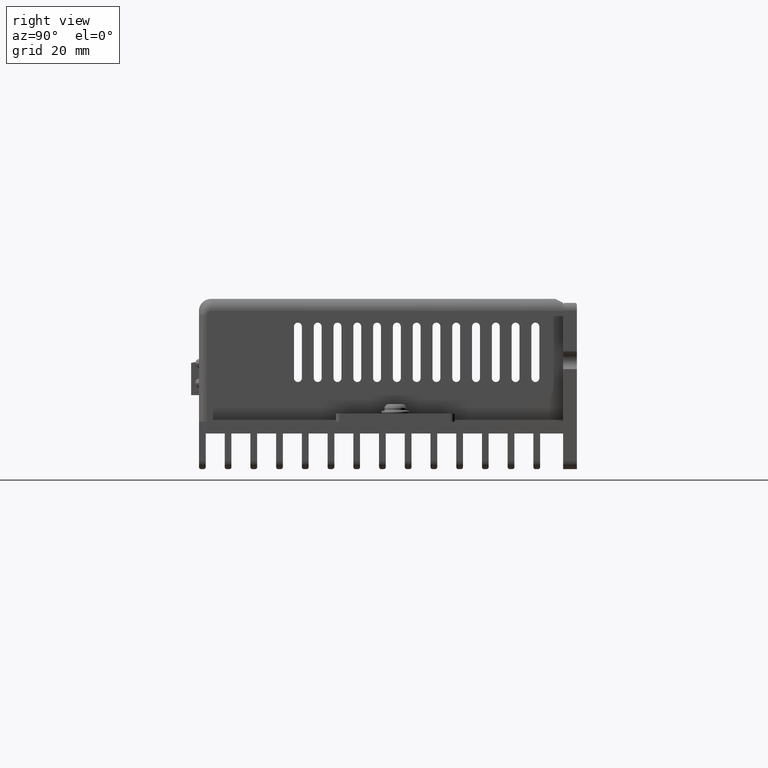
[diagram: clean part render]
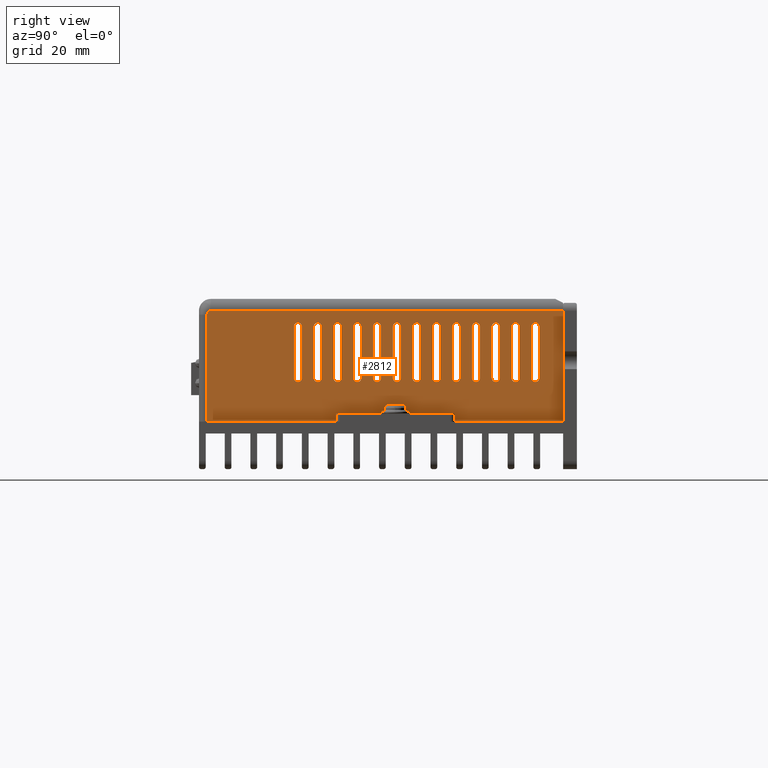
[diagram: same view with one face highlighted and labeled with its STEP entity id]
A machine part, right view. The second image highlights one B-rep face of the part: STEP entity #2812.
In plain terms, the highlighted planar face has unit normal (1, 0, 0).
Its self-contained STEP definition (entity closure, byte-faithful):
#3 = DIRECTION ( 'NONE',  ( 0.0000000000000000000, 0.0000000000000000000, 1.000000000000000000 ) ) ;
#22 = ORIENTED_EDGE ( 'NONE', *, *, #33573, .T. ) ;
#85 = EDGE_CURVE ( 'NONE', #54067, #29801, #30107, .T. ) ;
#108 = AXIS2_PLACEMENT_3D ( 'NONE', #40824, #23910, #10650 ) ;
#144 = EDGE_CURVE ( 'NONE', #53235, #54624, #29456, .T. ) ;
#166 = ORIENTED_EDGE ( 'NONE', *, *, #25195, .F. ) ;
#205 = VECTOR ( 'NONE', #6120, 39.37007874015748100 ) ;
#326 = CARTESIAN_POINT ( 'NONE',  ( 2.559055118110210800, -0.6496062992126278000, -0.7874015748031502100 ) ) ;
#345 = VERTEX_POINT ( 'NONE', #15387 ) ;
#463 = ORIENTED_EDGE ( 'NONE', *, *, #3435, .T. ) ;
#530 = DIRECTION ( 'NONE',  ( 0.0000000000000000000, 0.0000000000000000000, -1.000000000000000000 ) ) ;
#556 = EDGE_CURVE ( 'NONE', #20065, #39069, #1890, .T. ) ;
#566 = EDGE_CURVE ( 'NONE', #11351, #50501, #33460, .T. ) ;
#595 = EDGE_LOOP ( 'NONE', ( #30745, #36022, #51693, #15812 ) ) ;
#866 = CARTESIAN_POINT ( 'NONE',  ( 2.559055118110224600, 1.358267716535404000, -0.2755905511811018700 ) ) ;
#867 = VERTEX_POINT ( 'NONE', #36143 ) ;
#939 = DIRECTION ( 'NONE',  ( -1.387778780781444600E-014, 0.0000000000000000000, -1.000000000000000000 ) ) ;
#1014 = LINE ( 'NONE', #41569, #7725 ) ;
#1063 = AXIS2_PLACEMENT_3D ( 'NONE', #20656, #29647, #38468 ) ;
#1080 = DIRECTION ( 'NONE',  ( -1.000000000000000000, -0.0000000000000000000, 6.938893903907222100E-015 ) ) ;
#1233 = DIRECTION ( 'NONE',  ( 0.0000000000000000000, 0.0000000000000000000, -1.000000000000000000 ) ) ;
#1313 = DIRECTION ( 'NONE',  ( -0.0000000000000000000, -0.0000000000000000000, 1.000000000000000000 ) ) ;
#1390 = CIRCLE ( 'NONE', #40778, 0.03937007874015751400 ) ;
#1819 = AXIS2_PLACEMENT_3D ( 'NONE', #7408, #11142, #54252 ) ;
#1890 = LINE ( 'NONE', #25684, #10647 ) ;
#2023 = AXIS2_PLACEMENT_3D ( 'NONE', #42573, #25485, #16713 ) ;
#2079 = DIRECTION ( 'NONE',  ( -1.000000000000000000, -0.0000000000000000000, -6.938893903907228400E-015 ) ) ;
#2100 = ORIENTED_EDGE ( 'NONE', *, *, #55110, .T. ) ;
#2228 = DIRECTION ( 'NONE',  ( 0.0000000000000000000, 0.0000000000000000000, 1.000000000000000000 ) ) ;
#2246 = VECTOR ( 'NONE', #25286, 39.37007874015748100 ) ;
#2311 = CARTESIAN_POINT ( 'NONE',  ( 2.559055118110248600, -1.751968503937015400, -0.1574803149606861200 ) ) ;
#2469 = DIRECTION ( 'NONE',  ( -1.000000000000000000, 0.0000000000000000000, -0.0000000000000000000 ) ) ;
#2536 = AXIS2_PLACEMENT_3D ( 'NONE', #39669, #13970, #39479 ) ;
#2671 = EDGE_CURVE ( 'NONE', #37878, #45658, #32479, .T. ) ;
#2689 = CARTESIAN_POINT ( 'NONE',  ( 2.559055118110210800, -0.05905511811026555000, -0.8267716535433077300 ) ) ;
#2691 = CARTESIAN_POINT ( 'NONE',  ( 2.559055118110237900, 1.555118110236191100, -0.09606299212598430600 ) ) ;
#2759 = CIRCLE ( 'NONE', #2023, 0.03937007874015751400 ) ;
#2800 = EDGE_CURVE ( 'NONE', #5831, #50523, #19733, .T. ) ;
#2803 = VERTEX_POINT ( 'NONE', #6524 ) ;
#2812 = ADVANCED_FACE ( 'NONE', ( #6350, #45236, #33845, #39226, #23734, #38520, #55308, #51305, #48596, #31156, #8352, #52629, #41192, #27797 ), #14755, .T. ) ;
#2857 = CARTESIAN_POINT ( 'NONE',  ( 2.559055118110237900, 0.1771653543306795900, -0.09606299212598430600 ) ) ;
#2862 = LINE ( 'NONE', #52740, #48273 ) ;
#2945 = ORIENTED_EDGE ( 'NONE', *, *, #38083, .T. ) ;
#3210 = VERTEX_POINT ( 'NONE', #7765 ) ;
#3435 = EDGE_CURVE ( 'NONE', #26463, #7226, #4902, .T. ) ;
#3600 = CARTESIAN_POINT ( 'NONE',  ( 2.559055118110210800, -0.05905511811026555000, -0.2755905511811022600 ) ) ;
#3652 = CARTESIAN_POINT ( 'NONE',  ( 2.559055118110224600, -0.2952755905512103900, -0.7874015748031496500 ) ) ;
#3669 = EDGE_CURVE ( 'NONE', #32869, #28489, #35750, .T. ) ;
#3682 = DIRECTION ( 'NONE',  ( -1.000000000000000000, -0.0000000000000000000, -6.938893903907222100E-015 ) ) ;
#3760 = EDGE_CURVE ( 'NONE', #10349, #867, #16294, .T. ) ;
#3853 = EDGE_CURVE ( 'NONE', #31057, #11296, #42441, .T. ) ;
#3947 = DIRECTION ( 'NONE',  ( -1.387778780781444600E-014, 8.673617379884028600E-016, -1.000000000000000000 ) ) ;
#3956 = DIRECTION ( 'NONE',  ( 0.0000000000000000000, 0.0000000000000000000, 1.000000000000000000 ) ) ;
#4038 = EDGE_CURVE ( 'NONE', #21245, #35120, #2862, .T. ) ;
#4042 = CARTESIAN_POINT ( 'NONE',  ( 2.559055118110183700, 1.476377952755876200, -0.7874015748031498700 ) ) ;
#4082 = DIRECTION ( 'NONE',  ( -1.000000000000000000, -0.0000000000000000000, 6.938893903907221300E-015 ) ) ;
#4094 = EDGE_CURVE ( 'NONE', #32790, #2803, #20951, .T. ) ;
#4129 = CARTESIAN_POINT ( 'NONE',  ( 2.559055118110210800, -0.8464566929134153000, -0.2362204724409449100 ) ) ;
#4177 = VERTEX_POINT ( 'NONE', #28312 ) ;
#4190 = EDGE_CURVE ( 'NONE', #12991, #15145, #27677, .T. ) ;
#4600 = VERTEX_POINT ( 'NONE', #30654 ) ;
#4640 = DIRECTION ( 'NONE',  ( -1.000000000000000000, -0.0000000000000000000, 6.938893903907222100E-015 ) ) ;
#4650 = VERTEX_POINT ( 'NONE', #18336 ) ;
#4674 = VERTEX_POINT ( 'NONE', #13658 ) ;
#4902 = LINE ( 'NONE', #40218, #49191 ) ;
#4951 = CIRCLE ( 'NONE', #20253, 0.03937007874015751400 ) ;
#5127 = CIRCLE ( 'NONE', #30765, 0.03937007874015738300 ) ;
#5180 = CARTESIAN_POINT ( 'NONE',  ( 2.559055118110237900, -0.4685039370079032200, -1.220472440944881500 ) ) ;
#5189 = VECTOR ( 'NONE', #21583, 39.37007874015748100 ) ;
#5303 = DIRECTION ( 'NONE',  ( -1.000000000000000000, 0.0000000000000000000, -0.0000000000000000000 ) ) ;
#5310 = EDGE_CURVE ( 'NONE', #41479, #20065, #47701, .T. ) ;
#5333 = CARTESIAN_POINT ( 'NONE',  ( 2.559055118110248600, -1.751968503937015400, -0.1574803149606861200 ) ) ;
#5397 = VERTEX_POINT ( 'NONE', #5180 ) ;
#5448 = LINE ( 'NONE', #43816, #30226 ) ;
#5475 = VERTEX_POINT ( 'NONE', #45254 ) ;
#5527 = EDGE_LOOP ( 'NONE', ( #27483, #30830, #18299, #53093 ) ) ;
#5619 = ORIENTED_EDGE ( 'NONE', *, *, #30406, .T. ) ;
#5831 = VERTEX_POINT ( 'NONE', #51646 ) ;
#5847 = DIRECTION ( 'NONE',  ( -0.0000000000000000000, -0.0000000000000000000, 1.000000000000000000 ) ) ;
#5998 = AXIS2_PLACEMENT_3D ( 'NONE', #14209, #1080, #22449 ) ;
#6120 = DIRECTION ( 'NONE',  ( -0.0000000000000000000, -0.0000000000000000000, 1.000000000000000000 ) ) ;
#6123 = LINE ( 'NONE', #47470, #26947 ) ;
#6220 = AXIS2_PLACEMENT_3D ( 'NONE', #9584, #38622, #3 ) ;
#6309 = AXIS2_PLACEMENT_3D ( 'NONE', #26330, #52059, #17734 ) ;
#6350 = FACE_BOUND ( 'NONE', #17159, .T. ) ;
#6524 = CARTESIAN_POINT ( 'NONE',  ( 2.559055118110224600, 0.2952755905511518800, -0.2755905511811022600 ) ) ;
#6673 = CARTESIAN_POINT ( 'NONE',  ( 2.559055118110210800, 0.7283464566928840000, -0.2755905511811022600 ) ) ;
#6799 = VECTOR ( 'NONE', #26143, 39.37007874015748100 ) ;
#6818 = CARTESIAN_POINT ( 'NONE',  ( 2.559055118110210800, 1.122047244094459100, -0.2755905511811022600 ) ) ;
#6929 = CARTESIAN_POINT ( 'NONE',  ( 2.559055118110237900, 1.862204724409419800, -1.141732283464597100 ) ) ;
#7028 = ORIENTED_EDGE ( 'NONE', *, *, #51836, .F. ) ;
#7143 = VERTEX_POINT ( 'NONE', #9072 ) ;
#7226 = VERTEX_POINT ( 'NONE', #17321 ) ;
#7408 = CARTESIAN_POINT ( 'NONE',  ( 2.559055118110210800, 0.5314960629920967300, -0.7874015748031496500 ) ) ;
#7458 = DIRECTION ( 'NONE',  ( -1.000000000000000000, -0.0000000000000000000, -6.938893903907222900E-015 ) ) ;
#7725 = VECTOR ( 'NONE', #54701, 39.37007874015748100 ) ;
#7729 = EDGE_CURVE ( 'NONE', #42741, #10107, #19270, .T. ) ;
#7765 = CARTESIAN_POINT ( 'NONE',  ( 2.559055118110237900, 1.791338582677136200, -1.220472440944881900 ) ) ;
#7769 = DIRECTION ( 'NONE',  ( 0.0000000000000000000, 0.0000000000000000000, -1.000000000000000000 ) ) ;
#7980 = EDGE_CURVE ( 'NONE', #45658, #44056, #27923, .T. ) ;
#8104 = ORIENTED_EDGE ( 'NONE', *, *, #20191, .T. ) ;
#8287 = CARTESIAN_POINT ( 'NONE',  ( 2.559055118110237900, -0.4685039370079032700, -1.141732283464607800 ) ) ;
#8352 = FACE_BOUND ( 'NONE', #37400, .T. ) ;
#8363 = CIRCLE ( 'NONE', #29694, 0.03937007874015751400 ) ;
#8459 = CARTESIAN_POINT ( 'NONE',  ( 2.559055118110237900, 0.4921259842519391500, -0.09606299212598430600 ) ) ;
#8482 = CARTESIAN_POINT ( 'NONE',  ( 2.559055118110210800, -0.05905511811026555000, -0.7874015748031502100 ) ) ;
#8495 = DIRECTION ( 'NONE',  ( 0.0000000000000000000, 0.0000000000000000000, -1.000000000000000000 ) ) ;
#8516 = EDGE_CURVE ( 'NONE', #4650, #10965, #1014, .T. ) ;
#8561 = EDGE_CURVE ( 'NONE', #345, #4177, #55370, .T. ) ;
#8581 = B_SPLINE_CURVE_WITH_KNOTS ( 'NONE', 3,
 ( #5333, #26878, #35865, #43945 ),
 .UNSPECIFIED., .F., .F.,
 ( 4, 4 ),
 ( 0.0000000000000000000, 1.000000000000000000 ),
 .UNSPECIFIED. ) ;
#8641 = DIRECTION ( 'NONE',  ( -0.0000000000000000000, -0.0000000000000000000, 1.000000000000000000 ) ) ;
#8987 = VERTEX_POINT ( 'NONE', #40943 ) ;
#9025 = CIRCLE ( 'NONE', #32069, 0.03937007874015751400 ) ;
#9061 = LINE ( 'NONE', #9358, #31153 ) ;
#9072 = CARTESIAN_POINT ( 'NONE',  ( 2.559055118110210800, 0.7283464566928840000, -0.2362204724409449100 ) ) ;
#9204 = DIRECTION ( 'NONE',  ( 0.0000000000000000000, 1.734723475976805700E-015, -1.000000000000000000 ) ) ;
#9358 = CARTESIAN_POINT ( 'NONE',  ( 2.559055118110237900, 1.161417322834616100, -0.09606299212598430600 ) ) ;
#9359 = DIRECTION ( 'NONE',  ( -1.000000000000000000, -0.0000000000000000000, 6.938893903907221300E-015 ) ) ;
#9420 = ORIENTED_EDGE ( 'NONE', *, *, #25663, .T. ) ;
#9430 = VERTEX_POINT ( 'NONE', #48984 ) ;
#9584 = CARTESIAN_POINT ( 'NONE',  ( 2.559055118110210800, 0.1377952755905218800, -0.7874015748031496500 ) ) ;
#9768 = CARTESIAN_POINT ( 'NONE',  ( 2.559055118110237900, -0.6102362204724705000, -0.09606299212598430600 ) ) ;
#9959 = DIRECTION ( 'NONE',  ( -0.0000000000000000000, -0.0000000000000000000, 1.000000000000000000 ) ) ;
#9989 = CARTESIAN_POINT ( 'NONE',  ( 2.559055118110210800, -0.2559055118110529800, -0.7874015748031496500 ) ) ;
#10098 = VERTEX_POINT ( 'NONE', #28075 ) ;
#10107 = VERTEX_POINT ( 'NONE', #54158 ) ;
#10285 = EDGE_CURVE ( 'NONE', #4600, #5475, #40102, .T. ) ;
#10349 = VERTEX_POINT ( 'NONE', #2311 ) ;
#10405 = AXIS2_PLACEMENT_3D ( 'NONE', #48896, #23162, #53184 ) ;
#10530 = ORIENTED_EDGE ( 'NONE', *, *, #31972, .T. ) ;
#10536 = CARTESIAN_POINT ( 'NONE',  ( 2.559055118110237900, 0.2952755905511518800, -0.09606299212598430600 ) ) ;
#10565 = CARTESIAN_POINT ( 'NONE',  ( 2.559055118110210800, -0.4527559055118403100, -0.2755905511811022600 ) ) ;
#10647 = VECTOR ( 'NONE', #17078, 39.37007874015748100 ) ;
#10650 = DIRECTION ( 'NONE',  ( 0.0000000000000000000, 0.0000000000000000000, -1.000000000000000000 ) ) ;
#10903 = AXIS2_PLACEMENT_3D ( 'NONE', #12902, #42912, #42545 ) ;
#10962 = LINE ( 'NONE', #45100, #205 ) ;
#10965 = VERTEX_POINT ( 'NONE', #48150 ) ;
#11142 = DIRECTION ( 'NONE',  ( -1.000000000000000000, 0.0000000000000000000, -0.0000000000000000000 ) ) ;
#11296 = VERTEX_POINT ( 'NONE', #19956 ) ;
#11304 = LINE ( 'NONE', #2857, #41490 ) ;
#11351 = VERTEX_POINT ( 'NONE', #46026 ) ;
#11473 = LINE ( 'NONE', #51857, #6799 ) ;
#11596 = DIRECTION ( 'NONE',  ( 0.0000000000000000000, 0.0000000000000000000, -1.000000000000000000 ) ) ;
#11610 = VECTOR ( 'NONE', #32622, 39.37007874015748100 ) ;
#11675 = VERTEX_POINT ( 'NONE', #15240 ) ;
#11824 = ORIENTED_EDGE ( 'NONE', *, *, #24104, .T. ) ;
#11948 = VERTEX_POINT ( 'NONE', #41852 ) ;
#12071 = EDGE_CURVE ( 'NONE', #11948, #21100, #36533, .T. ) ;
#12100 = LINE ( 'NONE', #45993, #45596 ) ;
#12146 = DIRECTION ( 'NONE',  ( 1.387778780781444600E-014, 0.0000000000000000000, -1.000000000000000000 ) ) ;
#12224 = CARTESIAN_POINT ( 'NONE',  ( 2.559055118110210800, -0.8464566929134153000, -0.2755905511811022600 ) ) ;
#12489 = ORIENTED_EDGE ( 'NONE', *, *, #144, .T. ) ;
#12512 = ORIENTED_EDGE ( 'NONE', *, *, #14848, .T. ) ;
#12529 = CARTESIAN_POINT ( 'NONE',  ( 2.559055118110210800, 0.9251968503936715000, -0.7874015748031502100 ) ) ;
#12714 = ORIENTED_EDGE ( 'NONE', *, *, #48386, .T. ) ;
#12902 = CARTESIAN_POINT ( 'NONE',  ( 2.559055118110210800, 0.7283464566928840000, -0.7874015748031496500 ) ) ;
#12991 = VERTEX_POINT ( 'NONE', #36652 ) ;
#13377 = DIRECTION ( 'NONE',  ( -1.000000000000000000, 0.0000000000000000000, -0.0000000000000000000 ) ) ;
#13386 = CARTESIAN_POINT ( 'NONE',  ( 2.559055118110224600, 1.279527559055089000, -0.2755905511811027600 ) ) ;
#13658 = CARTESIAN_POINT ( 'NONE',  ( 2.559055118110224600, 1.279527559055089000, -0.7874015748031496500 ) ) ;
#13730 = CIRCLE ( 'NONE', #43030, 0.03937007874015744500 ) ;
#13803 = ORIENTED_EDGE ( 'NONE', *, *, #5310, .T. ) ;
#13824 = VERTEX_POINT ( 'NONE', #14091 ) ;
#13849 = CIRCLE ( 'NONE', #6220, 0.03937007874015751400 ) ;
#13855 = CARTESIAN_POINT ( 'NONE',  ( 2.559055118110210800, 0.3346456692913094000, -0.7874015748031502100 ) ) ;
#13970 = DIRECTION ( 'NONE',  ( -1.000000000000000000, -0.0000000000000000000, 6.938893903907228400E-015 ) ) ;
#14091 = CARTESIAN_POINT ( 'NONE',  ( 2.559055118110224600, 1.161417322834616100, -0.2755905511811033200 ) ) ;
#14209 = CARTESIAN_POINT ( 'NONE',  ( 2.559055118110210800, -0.6496062992126278000, -0.7874015748031502100 ) ) ;
#14300 = CARTESIAN_POINT ( 'NONE',  ( 2.559055118110224600, 0.9645669291338288000, -0.2755905511811019800 ) ) ;
#14331 = EDGE_CURVE ( 'NONE', #33795, #9430, #2759, .T. ) ;
#14385 = EDGE_CURVE ( 'NONE', #10107, #33623, #20195, .T. ) ;
#14427 = DIRECTION ( 'NONE',  ( -0.0000000000000000000, 0.0000000000000000000, -1.000000000000000000 ) ) ;
#14534 = EDGE_CURVE ( 'NONE', #29873, #53196, #33667, .T. ) ;
#14755 = PLANE ( 'NONE',  #108 ) ;
#14848 = EDGE_CURVE ( 'NONE', #37287, #25798, #24823, .T. ) ;
#15101 = DIRECTION ( 'NONE',  ( 0.0000000000000000000, 0.0000000000000000000, 1.000000000000000000 ) ) ;
#15138 = DIRECTION ( 'NONE',  ( 0.0000000000000000000, 0.0000000000000000000, -1.000000000000000000 ) ) ;
#15145 = VERTEX_POINT ( 'NONE', #38918 ) ;
#15240 = CARTESIAN_POINT ( 'NONE',  ( 2.559055118110210800, 1.122047244094459100, -0.2362204724409447700 ) ) ;
#15371 = CIRCLE ( 'NONE', #17828, 0.03937007874015751400 ) ;
#15387 = CARTESIAN_POINT ( 'NONE',  ( 2.559055118110224600, -0.6889763779527851000, -0.2755905511811027600 ) ) ;
#15420 = DIRECTION ( 'NONE',  ( -1.000000000000000000, 0.0000000000000000000, -0.0000000000000000000 ) ) ;
#15516 = ORIENTED_EDGE ( 'NONE', *, *, #54019, .T. ) ;
#15570 = DIRECTION ( 'NONE',  ( 0.0000000000000000000, 0.0000000000000000000, 1.000000000000000000 ) ) ;
#15668 = ORIENTED_EDGE ( 'NONE', *, *, #39757, .T. ) ;
#15812 = ORIENTED_EDGE ( 'NONE', *, *, #7980, .T. ) ;
#16294 = LINE ( 'NONE', #38312, #24326 ) ;
#16295 = CARTESIAN_POINT ( 'NONE',  ( 2.559055118110210800, 1.318897637795246400, -0.2755905511811017100 ) ) ;
#16434 = VECTOR ( 'NONE', #40996, 39.37007874015748100 ) ;
#16571 = CARTESIAN_POINT ( 'NONE',  ( 2.559055118110237900, 1.862204724409419800, -1.220472440944881500 ) ) ;
#16614 = LINE ( 'NONE', #28506, #35354 ) ;
#16694 = DIRECTION ( 'NONE',  ( -1.000000000000000000, -0.0000000000000000000, 6.938893903907221300E-015 ) ) ;
#16713 = DIRECTION ( 'NONE',  ( 0.0000000000000000000, 0.0000000000000000000, 1.000000000000000000 ) ) ;
#16761 = VECTOR ( 'NONE', #9959, 39.37007874015748100 ) ;
#16766 = DIRECTION ( 'NONE',  ( 0.0000000000000000000, 0.0000000000000000000, -1.000000000000000000 ) ) ;
#16985 = CIRCLE ( 'NONE', #50074, 0.03937007874015751400 ) ;
#17078 = DIRECTION ( 'NONE',  ( -0.0000000000000000000, -0.0000000000000000000, 1.000000000000000000 ) ) ;
#17107 = DIRECTION ( 'NONE',  ( -1.000000000000000000, -0.0000000000000000000, 6.938893903907228400E-015 ) ) ;
#17141 = EDGE_CURVE ( 'NONE', #42267, #34102, #23033, .T. ) ;
#17159 = EDGE_LOOP ( 'NONE', ( #21973, #44325, #12489, #23614, #50049 ) ) ;
#17161 = ORIENTED_EDGE ( 'NONE', *, *, #44487, .T. ) ;
#17321 = CARTESIAN_POINT ( 'NONE',  ( 2.559055118110224600, 0.09842519685036429900, -0.2755905511811027600 ) ) ;
#17411 = EDGE_CURVE ( 'NONE', #46389, #31057, #10962, .T. ) ;
#17450 = DIRECTION ( 'NONE',  ( -1.000000000000000000, -0.0000000000000000000, 6.938893903907221300E-015 ) ) ;
#17526 = AXIS2_PLACEMENT_3D ( 'NONE', #13855, #17450, #9204 ) ;
#17644 = VECTOR ( 'NONE', #27820, 39.37007874015748100 ) ;
#17710 = DIRECTION ( 'NONE',  ( 0.0000000000000000000, 0.0000000000000000000, 1.000000000000000000 ) ) ;
#17734 = DIRECTION ( 'NONE',  ( 0.0000000000000000000, 0.0000000000000000000, -1.000000000000000000 ) ) ;
#17752 = ORIENTED_EDGE ( 'NONE', *, *, #2800, .T. ) ;
#17828 = AXIS2_PLACEMENT_3D ( 'NONE', #37555, #38293, #3956 ) ;
#17974 = CARTESIAN_POINT ( 'NONE',  ( 2.559055118110210800, 1.122047244094459100, -0.7874015748031502100 ) ) ;
#18003 = VECTOR ( 'NONE', #51351, 39.37007874015748100 ) ;
#18244 = EDGE_CURVE ( 'NONE', #54624, #33795, #6123, .T. ) ;
#18299 = ORIENTED_EDGE ( 'NONE', *, *, #46481, .T. ) ;
#18336 = CARTESIAN_POINT ( 'NONE',  ( 2.559055118110224600, -0.4133858267716829000, -0.2755905511811033200 ) ) ;
#18452 = AXIS2_PLACEMENT_3D ( 'NONE', #6818, #15420, #24591 ) ;
#18619 = CIRCLE ( 'NONE', #35777, 0.03937007874015751400 ) ;
#18651 = DIRECTION ( 'NONE',  ( -0.0000000000000000000, -0.0000000000000000000, 1.000000000000000000 ) ) ;
#18652 = CARTESIAN_POINT ( 'NONE',  ( 2.559055118110237900, -0.2952755905512103300, -0.09606299212598430600 ) ) ;
#19270 = LINE ( 'NONE', #38672, #5189 ) ;
#19360 = CARTESIAN_POINT ( 'NONE',  ( 2.559055118110224600, 0.3740157480314669200, -0.2755905511811033200 ) ) ;
#19422 = EDGE_CURVE ( 'NONE', #33035, #42741, #15371, .T. ) ;
#19653 = CARTESIAN_POINT ( 'NONE',  ( 2.559055118110210800, 0.3346456692913094000, -0.8267716535433077300 ) ) ;
#19669 = ORIENTED_EDGE ( 'NONE', *, *, #23912, .T. ) ;
#19729 = CARTESIAN_POINT ( 'NONE',  ( 2.559055118110224600, -0.8070866141732576700, -0.2755905511811033200 ) ) ;
#19733 = LINE ( 'NONE', #40639, #16434 ) ;
#19956 = CARTESIAN_POINT ( 'NONE',  ( 2.559055118110210800, -0.4527559055118403100, -0.2362204724409447700 ) ) ;
#19996 = CARTESIAN_POINT ( 'NONE',  ( 2.559055118110224600, -0.09842519685042301600, -0.2755905511811022600 ) ) ;
#20065 = VERTEX_POINT ( 'NONE', #28835 ) ;
#20191 = EDGE_CURVE ( 'NONE', #15145, #21245, #21389, .T. ) ;
#20195 = CIRCLE ( 'NONE', #17526, 0.03937007874015751400 ) ;
#20234 = AXIS2_PLACEMENT_3D ( 'NONE', #8482, #17107, #3947 ) ;
#20253 = AXIS2_PLACEMENT_3D ( 'NONE', #40658, #32579, #32211 ) ;
#20260 = ORIENTED_EDGE ( 'NONE', *, *, #7729, .T. ) ;
#20298 = CARTESIAN_POINT ( 'NONE',  ( 2.559055118110224600, 1.476377952755876200, -0.2755905511811027600 ) ) ;
#20368 = AXIS2_PLACEMENT_3D ( 'NONE', #17974, #9359, #530 ) ;
#20656 = CARTESIAN_POINT ( 'NONE',  ( 2.559055118110210800, 1.515748031496033900, -0.7874015748031502100 ) ) ;
#20948 = DIRECTION ( 'NONE',  ( 0.0000000000000000000, 0.0000000000000000000, -1.000000000000000000 ) ) ;
#20951 = LINE ( 'NONE', #10536, #23619 ) ;
#21031 = ORIENTED_EDGE ( 'NONE', *, *, #17411, .T. ) ;
#21068 = VECTOR ( 'NONE', #15138, 39.37007874015748100 ) ;
#21100 = VERTEX_POINT ( 'NONE', #14300 ) ;
#21245 = VERTEX_POINT ( 'NONE', #49738 ) ;
#21389 = CIRCLE ( 'NONE', #10903, 0.03937007874015751400 ) ;
#21583 = DIRECTION ( 'NONE',  ( 0.0000000000000000000, 0.0000000000000000000, -1.000000000000000000 ) ) ;
#21585 = DIRECTION ( 'NONE',  ( 0.0000000000000000000, 0.0000000000000000000, -1.000000000000000000 ) ) ;
#21679 = CARTESIAN_POINT ( 'NONE',  ( 2.559055118110210800, 0.7283464566928840000, -0.2755905511811022600 ) ) ;
#21932 = DIRECTION ( 'NONE',  ( 0.0000000000000000000, 0.0000000000000000000, -1.000000000000000000 ) ) ;
#21973 = ORIENTED_EDGE ( 'NONE', *, *, #40394, .T. ) ;
#22031 = VECTOR ( 'NONE', #8641, 39.37007874015748100 ) ;
#22121 = CIRCLE ( 'NONE', #6309, 0.03937007874015751400 ) ;
#22440 = ORIENTED_EDGE ( 'NONE', *, *, #85, .T. ) ;
#22449 = DIRECTION ( 'NONE',  ( -1.387778780781444600E-014, 0.0000000000000000000, -1.000000000000000000 ) ) ;
#22705 = EDGE_CURVE ( 'NONE', #21100, #52283, #55433, .T. ) ;
#22839 = VECTOR ( 'NONE', #35436, 39.37007874015748100 ) ;
#23005 = EDGE_CURVE ( 'NONE', #26661, #32869, #25886, .T. ) ;
#23033 = CIRCLE ( 'NONE', #20368, 0.03937007874015751400 ) ;
#23162 = DIRECTION ( 'NONE',  ( -1.000000000000000000, 0.0000000000000000000, -0.0000000000000000000 ) ) ;
#23188 = CARTESIAN_POINT ( 'NONE',  ( 2.559055118110237900, -0.2165354330708952900, -0.09606299212598430600 ) ) ;
#23575 = VECTOR ( 'NONE', #36351, 39.37007874015748100 ) ;
#23602 = EDGE_CURVE ( 'NONE', #11675, #13824, #28513, .T. ) ;
#23614 = ORIENTED_EDGE ( 'NONE', *, *, #18244, .T. ) ;
#23619 = VECTOR ( 'NONE', #49160, 39.37007874015748100 ) ;
#23634 = CARTESIAN_POINT ( 'NONE',  ( 2.559055118110224600, 1.358267716535404000, -0.7874015748031496500 ) ) ;
#23734 = FACE_BOUND ( 'NONE', #41941, .T. ) ;
#23787 = CARTESIAN_POINT ( 'NONE',  ( 2.559055118110224600, 0.4921259842519391500, -0.2755905511811027600 ) ) ;
#23823 = CARTESIAN_POINT ( 'NONE',  ( 2.559055118110210800, -0.2559055118110529800, -0.2755905511811017100 ) ) ;
#23910 = DIRECTION ( 'NONE',  ( 1.000000000000000000, 0.0000000000000000000, 0.0000000000000000000 ) ) ;
#23912 = EDGE_CURVE ( 'NONE', #45534, #41939, #33800, .T. ) ;
#23950 = CARTESIAN_POINT ( 'NONE',  ( 2.559055118110210800, 0.3346456692913094000, -0.2755905511811022600 ) ) ;
#23954 = CARTESIAN_POINT ( 'NONE',  ( 2.559055118110237900, 0.9645669291338286900, -0.09606299212598430600 ) ) ;
#23981 = CARTESIAN_POINT ( 'NONE',  ( 2.559055118110210800, -0.4527559055118403100, -0.7874015748031496500 ) ) ;
#24104 = EDGE_CURVE ( 'NONE', #28489, #45805, #41161, .T. ) ;
#24112 = EDGE_CURVE ( 'NONE', #2803, #33035, #9025, .T. ) ;
#24220 = AXIS2_PLACEMENT_3D ( 'NONE', #39396, #34692, #21932 ) ;
#24224 = DIRECTION ( 'NONE',  ( -1.000000000000000000, -0.0000000000000000000, -6.938893903907234700E-015 ) ) ;
#24227 = CARTESIAN_POINT ( 'NONE',  ( 2.559055118110224600, 0.09842519685036435500, -0.7874015748031496500 ) ) ;
#24326 = VECTOR ( 'NONE', #21585, 39.37007874015748100 ) ;
#24365 = CIRCLE ( 'NONE', #10405, 0.03937007874015751400 ) ;
#24532 = ORIENTED_EDGE ( 'NONE', *, *, #17141, .T. ) ;
#24586 = AXIS2_PLACEMENT_3D ( 'NONE', #24850, #7458, #54875 ) ;
#24591 = DIRECTION ( 'NONE',  ( 0.0000000000000000000, 0.0000000000000000000, 1.000000000000000000 ) ) ;
#24751 = EDGE_CURVE ( 'NONE', #29186, #37878, #35675, .T. ) ;
#24823 = LINE ( 'NONE', #33121, #37600 ) ;
#24850 = CARTESIAN_POINT ( 'NONE',  ( 2.559055118110210800, 1.515748031496033900, -0.2755905511811017100 ) ) ;
#25195 = EDGE_CURVE ( 'NONE', #5475, #3210, #37688, .T. ) ;
#25286 = DIRECTION ( 'NONE',  ( -0.0000000000000000000, 1.000000000000000000, 0.0000000000000000000 ) ) ;
#25398 = EDGE_LOOP ( 'NONE', ( #39816, #30044, #20260, #44567, #9420, #49981 ) ) ;
#25485 = DIRECTION ( 'NONE',  ( -1.000000000000000000, 0.0000000000000000000, -0.0000000000000000000 ) ) ;
#25662 = CARTESIAN_POINT ( 'NONE',  ( 2.559055118110237900, -0.8858267716535724900, -0.09606299212598430600 ) ) ;
#25663 = EDGE_CURVE ( 'NONE', #33623, #32790, #1390, .T. ) ;
#25684 = CARTESIAN_POINT ( 'NONE',  ( 2.559055118110237900, -0.09842519685042301600, -0.09606299212598430600 ) ) ;
#25734 = ORIENTED_EDGE ( 'NONE', *, *, #14534, .T. ) ;
#25791 = CIRCLE ( 'NONE', #1819, 0.03937007874015738300 ) ;
#25798 = VERTEX_POINT ( 'NONE', #49095 ) ;
#25886 = CIRCLE ( 'NONE', #24586, 0.03937007874015751400 ) ;
#26071 = DIRECTION ( 'NONE',  ( 0.0000000000000000000, 0.0000000000000000000, -1.000000000000000000 ) ) ;
#26143 = DIRECTION ( 'NONE',  ( -0.0000000000000000000, -0.0000000000000000000, 1.000000000000000000 ) ) ;
#26147 = VERTEX_POINT ( 'NONE', #4042 ) ;
#26330 = CARTESIAN_POINT ( 'NONE',  ( 2.559055118110210800, 1.122047244094459100, -0.7874015748031502100 ) ) ;
#26446 = CARTESIAN_POINT ( 'NONE',  ( 2.559055118110224600, 0.9645669291338288000, -0.7874015748031491000 ) ) ;
#26455 = CARTESIAN_POINT ( 'NONE',  ( 2.559055118110224600, 0.6889763779527265900, -0.2755905511811022600 ) ) ;
#26463 = VERTEX_POINT ( 'NONE', #24227 ) ;
#26586 = CARTESIAN_POINT ( 'NONE',  ( 2.559055118110224600, -0.01968503937010800500, -0.7874015748031491000 ) ) ;
#26647 = DIRECTION ( 'NONE',  ( -1.000000000000000000, -0.0000000000000000000, 6.938893903907222900E-015 ) ) ;
#26661 = VERTEX_POINT ( 'NONE', #20298 ) ;
#26747 = AXIS2_PLACEMENT_3D ( 'NONE', #36416, #13377, #17710 ) ;
#26794 = CIRCLE ( 'NONE', #26747, 0.03937007874015738300 ) ;
#26878 = CARTESIAN_POINT ( 'NONE',  ( 2.559055118110217500, -1.751968503936975900, -0.1384891964605250700 ) ) ;
#26947 = VECTOR ( 'NONE', #26071, 39.37007874015748100 ) ;
#27076 = VERTEX_POINT ( 'NONE', #32239 ) ;
#27483 = ORIENTED_EDGE ( 'NONE', *, *, #566, .T. ) ;
#27663 = ORIENTED_EDGE ( 'NONE', *, *, #45661, .T. ) ;
#27677 = LINE ( 'NONE', #27945, #11610 ) ;
#27735 = CARTESIAN_POINT ( 'NONE',  ( 2.559055118110237900, 1.279527559055089000, -0.09606299212598430600 ) ) ;
#27797 = FACE_OUTER_BOUND ( 'NONE', #33110, .T. ) ;
#27820 = DIRECTION ( 'NONE',  ( 0.0000000000000000000, 0.0000000000000000000, -1.000000000000000000 ) ) ;
#27923 = CIRCLE ( 'NONE', #37881, 0.03937007874015751400 ) ;
#27945 = CARTESIAN_POINT ( 'NONE',  ( 2.559055118110237900, 0.7677165354330414100, -0.09606299212598430600 ) ) ;
#28075 = CARTESIAN_POINT ( 'NONE',  ( 2.559055118110224600, 0.5708661417322542500, -0.2755905511811018700 ) ) ;
#28119 = LINE ( 'NONE', #52708, #16761 ) ;
#28138 = EDGE_LOOP ( 'NONE', ( #21031, #47451, #31906, #52920, #50448 ) ) ;
#28312 = CARTESIAN_POINT ( 'NONE',  ( 2.559055118110224600, -0.6102362204724703900, -0.2755905511811019800 ) ) ;
#28489 = VERTEX_POINT ( 'NONE', #44451 ) ;
#28506 = CARTESIAN_POINT ( 'NONE',  ( 2.559055118110237900, -0.4685039370079032700, -0.09606299212598430600 ) ) ;
#28513 = CIRCLE ( 'NONE', #18452, 0.03937007874015751400 ) ;
#28541 = ORIENTED_EDGE ( 'NONE', *, *, #44086, .T. ) ;
#28595 = AXIS2_PLACEMENT_3D ( 'NONE', #46440, #3682, #12146 ) ;
#28804 = EDGE_LOOP ( 'NONE', ( #11824, #51699, #17161, #36431, #52039 ) ) ;
#28835 = CARTESIAN_POINT ( 'NONE',  ( 2.559055118110211200, -0.09842519685042301600, -0.7874015748031498700 ) ) ;
#28842 = CIRCLE ( 'NONE', #39002, 0.03937007874015738300 ) ;
#29074 = DIRECTION ( 'NONE',  ( 0.0000000000000000000, 0.0000000000000000000, 1.000000000000000000 ) ) ;
#29186 = VERTEX_POINT ( 'NONE', #31815 ) ;
#29198 = CARTESIAN_POINT ( 'NONE',  ( 2.559055118110237900, 1.358267716535404000, -0.09606299212598430600 ) ) ;
#29456 = CIRCLE ( 'NONE', #35259, 0.03937007874015738300 ) ;
#29647 = DIRECTION ( 'NONE',  ( -1.000000000000000000, -0.0000000000000000000, 6.938893903907222900E-015 ) ) ;
#29694 = AXIS2_PLACEMENT_3D ( 'NONE', #38147, #46404, #34207 ) ;
#29713 = DIRECTION ( 'NONE',  ( 1.387778780781444600E-014, 8.673617379884028600E-016, -1.000000000000000000 ) ) ;
#29744 = ORIENTED_EDGE ( 'NONE', *, *, #54856, .T. ) ;
#29767 = CARTESIAN_POINT ( 'NONE',  ( 2.559055118110210800, 0.3346456692913094000, -0.7874015748031502100 ) ) ;
#29801 = VERTEX_POINT ( 'NONE', #23634 ) ;
#29873 = VERTEX_POINT ( 'NONE', #36974 ) ;
#29915 = VERTEX_POINT ( 'NONE', #36779 ) ;
#30044 = ORIENTED_EDGE ( 'NONE', *, *, #19422, .T. ) ;
#30107 = LINE ( 'NONE', #29198, #45552 ) ;
#30158 = EDGE_CURVE ( 'NONE', #53196, #345, #28119, .T. ) ;
#30223 = ORIENTED_EDGE ( 'NONE', *, *, #36992, .T. ) ;
#30226 = VECTOR ( 'NONE', #1233, 39.37007874015748100 ) ;
#30406 = EDGE_CURVE ( 'NONE', #46918, #54067, #38846, .T. ) ;
#30511 = AXIS2_PLACEMENT_3D ( 'NONE', #3600, #46931, #7769 ) ;
#30654 = CARTESIAN_POINT ( 'NONE',  ( 2.559055118110269900, -1.712598425196866400, -0.1181102362204344600 ) ) ;
#30673 = CARTESIAN_POINT ( 'NONE',  ( 2.559055118110238800, 1.791338582677133300, -0.1181102362204475600 ) ) ;
#30745 = ORIENTED_EDGE ( 'NONE', *, *, #49462, .T. ) ;
#30765 = AXIS2_PLACEMENT_3D ( 'NONE', #6673, #49074, #15101 ) ;
#30799 = AXIS2_PLACEMENT_3D ( 'NONE', #51818, #5303, #48071 ) ;
#30825 = ORIENTED_EDGE ( 'NONE', *, *, #12071, .T. ) ;
#30830 = ORIENTED_EDGE ( 'NONE', *, *, #37348, .T. ) ;
#30913 = EDGE_LOOP ( 'NONE', ( #463, #37705, #31941, #10530 ) ) ;
#31057 = VERTEX_POINT ( 'NONE', #45455 ) ;
#31153 = VECTOR ( 'NONE', #44189, 39.37007874015748100 ) ;
#31156 = FACE_BOUND ( 'NONE', #34811, .T. ) ;
#31748 = VECTOR ( 'NONE', #1313, 39.37007874015748100 ) ;
#31815 = CARTESIAN_POINT ( 'NONE',  ( 2.559055118110224600, -0.2952755905512103900, -0.2755905511811027600 ) ) ;
#31906 = ORIENTED_EDGE ( 'NONE', *, *, #42773, .T. ) ;
#31925 = ORIENTED_EDGE ( 'NONE', *, *, #51759, .T. ) ;
#31941 = ORIENTED_EDGE ( 'NONE', *, *, #39672, .T. ) ;
#31972 = EDGE_CURVE ( 'NONE', #29915, #26463, #13849, .T. ) ;
#32069 = AXIS2_PLACEMENT_3D ( 'NONE', #23950, #40320, #53252 ) ;
#32211 = DIRECTION ( 'NONE',  ( 0.0000000000000000000, 0.0000000000000000000, 1.000000000000000000 ) ) ;
#32239 = CARTESIAN_POINT ( 'NONE',  ( 2.559055118110224600, -0.8858267716535724900, -0.2755905511811022600 ) ) ;
#32469 = DIRECTION ( 'NONE',  ( 0.0000000000000000000, 0.0000000000000000000, 1.000000000000000000 ) ) ;
#32479 = LINE ( 'NONE', #23188, #21068 ) ;
#32488 = ORIENTED_EDGE ( 'NONE', *, *, #30158, .T. ) ;
#32579 = DIRECTION ( 'NONE',  ( -1.000000000000000000, 0.0000000000000000000, -0.0000000000000000000 ) ) ;
#32622 = DIRECTION ( 'NONE',  ( 0.0000000000000000000, 0.0000000000000000000, -1.000000000000000000 ) ) ;
#32790 = VERTEX_POINT ( 'NONE', #40413 ) ;
#32826 = DIRECTION ( 'NONE',  ( -0.0000000000000000000, -0.0000000000000000000, 1.000000000000000000 ) ) ;
#32869 = VERTEX_POINT ( 'NONE', #36821 ) ;
#32949 = EDGE_LOOP ( 'NONE', ( #55503, #27663, #44903, #25734, #32488 ) ) ;
#33035 = VERTEX_POINT ( 'NONE', #37597 ) ;
#33110 = EDGE_LOOP ( 'NONE', ( #29744, #12714, #2100, #12512, #2945, #166, #35828, #7028, #47095 ) ) ;
#33121 = CARTESIAN_POINT ( 'NONE',  ( 2.559055118110237900, 0.7125984251968211500, -0.09606299212598430600 ) ) ;
#33224 = ORIENTED_EDGE ( 'NONE', *, *, #22705, .T. ) ;
#33241 = CARTESIAN_POINT ( 'NONE',  ( 2.559055118110210800, 0.5314960629920967300, -0.2755905511811017100 ) ) ;
#33382 = CIRCLE ( 'NONE', #52482, 0.03937007874015738300 ) ;
#33460 = LINE ( 'NONE', #8459, #22031 ) ;
#33573 = EDGE_CURVE ( 'NONE', #29801, #4674, #4951, .T. ) ;
#33623 = VERTEX_POINT ( 'NONE', #19653 ) ;
#33667 = CIRCLE ( 'NONE', #5998, 0.03937007874015751400 ) ;
#33713 = DIRECTION ( 'NONE',  ( 0.0000000000000000000, 0.0000000000000000000, -1.000000000000000000 ) ) ;
#33730 = CARTESIAN_POINT ( 'NONE',  ( 2.559055118110237900, 1.862204724409419800, -1.220472440944881900 ) ) ;
#33795 = VERTEX_POINT ( 'NONE', #54910 ) ;
#33800 = LINE ( 'NONE', #43156, #49895 ) ;
#33845 = FACE_BOUND ( 'NONE', #28138, .T. ) ;
#33988 = ORIENTED_EDGE ( 'NONE', *, *, #38511, .T. ) ;
#34035 = VECTOR ( 'NONE', #38233, 39.37007874015748100 ) ;
#34102 = VERTEX_POINT ( 'NONE', #35364 ) ;
#34207 = DIRECTION ( 'NONE',  ( 0.0000000000000000000, 0.0000000000000000000, -1.000000000000000000 ) ) ;
#34373 = VERTEX_POINT ( 'NONE', #36643 ) ;
#34437 = VERTEX_POINT ( 'NONE', #50553 ) ;
#34567 = ORIENTED_EDGE ( 'NONE', *, *, #23602, .T. ) ;
#34630 = EDGE_CURVE ( 'NONE', #27076, #53235, #26794, .T. ) ;
#34692 = DIRECTION ( 'NONE',  ( -1.000000000000000000, -0.0000000000000000000, -6.938893903907221300E-015 ) ) ;
#34811 = EDGE_LOOP ( 'NONE', ( #30825, #33224, #30223, #43972, #31925 ) ) ;
#34954 = ORIENTED_EDGE ( 'NONE', *, *, #42955, .T. ) ;
#35120 = VERTEX_POINT ( 'NONE', #26455 ) ;
#35259 = AXIS2_PLACEMENT_3D ( 'NONE', #12224, #46532, #29074 ) ;
#35354 = VECTOR ( 'NONE', #32826, 39.37007874015748100 ) ;
#35364 = CARTESIAN_POINT ( 'NONE',  ( 2.559055118110210800, 1.122047244094459100, -0.8267716535433077300 ) ) ;
#35372 = CARTESIAN_POINT ( 'NONE',  ( 2.559055118110224600, -0.4921259842519979400, -0.7874015748031496500 ) ) ;
#35436 = DIRECTION ( 'NONE',  ( 0.0000000000000000000, 0.0000000000000000000, -1.000000000000000000 ) ) ;
#35476 = EDGE_CURVE ( 'NONE', #34373, #39303, #18619, .T. ) ;
#35675 = CIRCLE ( 'NONE', #52627, 0.03937007874015751400 ) ;
#35750 = LINE ( 'NONE', #2691, #17644 ) ;
#35777 = AXIS2_PLACEMENT_3D ( 'NONE', #12529, #4082, #55660 ) ;
#35828 = ORIENTED_EDGE ( 'NONE', *, *, #10285, .F. ) ;
#35865 = CARTESIAN_POINT ( 'NONE',  ( 2.559055118110211200, -1.731588585533517800, -0.1183010037976918600 ) ) ;
#35909 = EDGE_CURVE ( 'NONE', #35120, #7143, #5127, .T. ) ;
#35979 = CARTESIAN_POINT ( 'NONE',  ( 2.559055118110210800, 1.515748031496033900, -0.8267716535433077300 ) ) ;
#36012 = DIRECTION ( 'NONE',  ( -1.000000000000000000, 0.0000000000000000000, -0.0000000000000000000 ) ) ;
#36022 = ORIENTED_EDGE ( 'NONE', *, *, #24751, .T. ) ;
#36143 = CARTESIAN_POINT ( 'NONE',  ( 2.559055118110237900, -1.751968503937026500, -1.220472440944881500 ) ) ;
#36351 = DIRECTION ( 'NONE',  ( -0.0000000000000000000, 1.000000000000000000, 0.0000000000000000000 ) ) ;
#36416 = CARTESIAN_POINT ( 'NONE',  ( 2.559055118110210800, -0.8464566929134153000, -0.2755905511811022600 ) ) ;
#36431 = ORIENTED_EDGE ( 'NONE', *, *, #23005, .T. ) ;
#36533 = CIRCLE ( 'NONE', #24220, 0.03937007874015751400 ) ;
#36643 = CARTESIAN_POINT ( 'NONE',  ( 2.559055118110210800, 0.9251968503936715000, -0.8267716535433077300 ) ) ;
#36652 = CARTESIAN_POINT ( 'NONE',  ( 2.559055118110224600, 0.7677165354330414100, -0.2755905511811033200 ) ) ;
#36741 = CARTESIAN_POINT ( 'NONE',  ( 2.559055118110224600, 1.082677165354301300, -0.2755905511811022600 ) ) ;
#36779 = CARTESIAN_POINT ( 'NONE',  ( 2.559055118110224600, 0.1771653543306795400, -0.7874015748031496500 ) ) ;
#36821 = CARTESIAN_POINT ( 'NONE',  ( 2.559055118110224600, 1.555118110236191300, -0.2755905511811020900 ) ) ;
#36974 = CARTESIAN_POINT ( 'NONE',  ( 2.559055118110210800, -0.6496062992126278000, -0.8267716535433077300 ) ) ;
#36992 = EDGE_CURVE ( 'NONE', #52283, #34373, #8363, .T. ) ;
#37163 = DIRECTION ( 'NONE',  ( -0.0000000000000000000, -0.0000000000000000000, 1.000000000000000000 ) ) ;
#37287 = VERTEX_POINT ( 'NONE', #37563 ) ;
#37348 = EDGE_CURVE ( 'NONE', #50501, #10098, #13730, .T. ) ;
#37400 = EDGE_LOOP ( 'NONE', ( #33988, #34567, #15516, #24532, #28541, #17752 ) ) ;
#37555 = CARTESIAN_POINT ( 'NONE',  ( 2.559055118110210800, 0.3346456692913094000, -0.2755905511811022600 ) ) ;
#37563 = CARTESIAN_POINT ( 'NONE',  ( 2.559055118110237900, 0.7125984251968211500, -1.141732283464601800 ) ) ;
#37597 = CARTESIAN_POINT ( 'NONE',  ( 2.559055118110210800, 0.3346456692913094000, -0.2362204724409447700 ) ) ;
#37600 = VECTOR ( 'NONE', #41740, 39.37007874015748100 ) ;
#37688 = LINE ( 'NONE', #42981, #51108 ) ;
#37705 = ORIENTED_EDGE ( 'NONE', *, *, #41294, .T. ) ;
#37743 = CIRCLE ( 'NONE', #20234, 0.03937007874015751400 ) ;
#37750 = EDGE_CURVE ( 'NONE', #4674, #46918, #40463, .T. ) ;
#37878 = VERTEX_POINT ( 'NONE', #45175 ) ;
#37881 = AXIS2_PLACEMENT_3D ( 'NONE', #9989, #36012, #2228 ) ;
#38083 = EDGE_CURVE ( 'NONE', #25798, #3210, #53287, .T. ) ;
#38147 = CARTESIAN_POINT ( 'NONE',  ( 2.559055118110210800, 0.9251968503936715000, -0.7874015748031502100 ) ) ;
#38233 = DIRECTION ( 'NONE',  ( -0.0000000000000000000, -0.0000000000000000000, 1.000000000000000000 ) ) ;
#38293 = DIRECTION ( 'NONE',  ( -1.000000000000000000, 0.0000000000000000000, -0.0000000000000000000 ) ) ;
#38312 = CARTESIAN_POINT ( 'NONE',  ( 2.559055118110237900, -1.751968503937015400, -0.09606299212598430600 ) ) ;
#38468 = DIRECTION ( 'NONE',  ( -1.387778780781444600E-014, 0.0000000000000000000, -1.000000000000000000 ) ) ;
#38511 = EDGE_CURVE ( 'NONE', #50523, #11675, #24365, .T. ) ;
#38520 = FACE_BOUND ( 'NONE', #30913, .T. ) ;
#38622 = DIRECTION ( 'NONE',  ( -1.000000000000000000, 0.0000000000000000000, -0.0000000000000000000 ) ) ;
#38672 = CARTESIAN_POINT ( 'NONE',  ( 2.559055118110237900, 0.3740157480314669200, -0.09606299212598430600 ) ) ;
#38807 = CIRCLE ( 'NONE', #30511, 0.03937007874015744500 ) ;
#38846 = CIRCLE ( 'NONE', #45644, 0.03937007874015751400 ) ;
#38918 = CARTESIAN_POINT ( 'NONE',  ( 2.559055118110224600, 0.7677165354330415200, -0.7874015748031496500 ) ) ;
#39002 = AXIS2_PLACEMENT_3D ( 'NONE', #21679, #55461, #47603 ) ;
#39069 = VERTEX_POINT ( 'NONE', #19996 ) ;
#39097 = CARTESIAN_POINT ( 'NONE',  ( 2.559055118110210800, 0.1377952755905218800, -0.2755905511811017100 ) ) ;
#39226 = FACE_BOUND ( 'NONE', #595, .T. ) ;
#39228 = ORIENTED_EDGE ( 'NONE', *, *, #4038, .T. ) ;
#39303 = VERTEX_POINT ( 'NONE', #51701 ) ;
#39396 = CARTESIAN_POINT ( 'NONE',  ( 2.559055118110210800, 0.9251968503936715000, -0.2755905511811017100 ) ) ;
#39479 = DIRECTION ( 'NONE',  ( -1.387778780781444600E-014, 0.0000000000000000000, -1.000000000000000000 ) ) ;
#39484 = EDGE_LOOP ( 'NONE', ( #40990, #5619, #22440, #22 ) ) ;
#39669 = CARTESIAN_POINT ( 'NONE',  ( 2.559055118110210800, -0.05905511811026555000, -0.7874015748031502100 ) ) ;
#39672 = EDGE_CURVE ( 'NONE', #46150, #29915, #11304, .T. ) ;
#39678 = ORIENTED_EDGE ( 'NONE', *, *, #556, .T. ) ;
#39757 = EDGE_CURVE ( 'NONE', #39069, #45534, #38807, .T. ) ;
#39764 = CARTESIAN_POINT ( 'NONE',  ( 2.559055118110211200, -0.6889763779527851000, -0.7874015748031498700 ) ) ;
#39816 = ORIENTED_EDGE ( 'NONE', *, *, #24112, .T. ) ;
#40102 = LINE ( 'NONE', #30673, #18003 ) ;
#40218 = CARTESIAN_POINT ( 'NONE',  ( 2.559055118110237900, 0.09842519685036428500, -0.09606299212598430600 ) ) ;
#40320 = DIRECTION ( 'NONE',  ( -1.000000000000000000, 0.0000000000000000000, -0.0000000000000000000 ) ) ;
#40394 = EDGE_CURVE ( 'NONE', #9430, #27076, #54148, .T. ) ;
#40413 = CARTESIAN_POINT ( 'NONE',  ( 2.559055118110211200, 0.2952755905511518800, -0.7874015748031498700 ) ) ;
#40463 = LINE ( 'NONE', #27735, #31748 ) ;
#40639 = CARTESIAN_POINT ( 'NONE',  ( 2.559055118110237900, 1.082677165354301000, -0.09606299212598430600 ) ) ;
#40658 = CARTESIAN_POINT ( 'NONE',  ( 2.559055118110210800, 1.318897637795246400, -0.7874015748031496500 ) ) ;
#40778 = AXIS2_PLACEMENT_3D ( 'NONE', #29767, #16694, #20948 ) ;
#40824 = CARTESIAN_POINT ( 'NONE',  ( 2.559055118110237900, 1.862204724409419800, -0.09606299212598430600 ) ) ;
#40943 = CARTESIAN_POINT ( 'NONE',  ( 2.559055118110224600, -0.6102362204724703900, -0.7874015748031491000 ) ) ;
#40990 = ORIENTED_EDGE ( 'NONE', *, *, #37750, .T. ) ;
#40996 = DIRECTION ( 'NONE',  ( -0.0000000000000000000, -0.0000000000000000000, 1.000000000000000000 ) ) ;
#41079 = CIRCLE ( 'NONE', #1063, 0.03937007874015751400 ) ;
#41161 = CIRCLE ( 'NONE', #41433, 0.03937007874015751400 ) ;
#41192 = FACE_BOUND ( 'NONE', #28804, .T. ) ;
#41294 = EDGE_CURVE ( 'NONE', #7226, #46150, #43287, .T. ) ;
#41433 = AXIS2_PLACEMENT_3D ( 'NONE', #44446, #26647, #939 ) ;
#41479 = VERTEX_POINT ( 'NONE', #2689 ) ;
#41490 = VECTOR ( 'NONE', #16766, 39.37007874015748100 ) ;
#41549 = EDGE_CURVE ( 'NONE', #34437, #11351, #25791, .T. ) ;
#41569 = CARTESIAN_POINT ( 'NONE',  ( 2.559055118110237900, -0.4133858267716829000, -0.09606299212598430600 ) ) ;
#41740 = DIRECTION ( 'NONE',  ( 0.0000000000000000000, 0.0000000000000000000, -1.000000000000000000 ) ) ;
#41852 = CARTESIAN_POINT ( 'NONE',  ( 2.559055118110224600, 0.8858267716535140900, -0.2755905511811027600 ) ) ;
#41939 = VERTEX_POINT ( 'NONE', #26586 ) ;
#41941 = EDGE_LOOP ( 'NONE', ( #15668, #19669, #34954, #13803, #39678 ) ) ;
#42267 = VERTEX_POINT ( 'NONE', #54479 ) ;
#42353 = LINE ( 'NONE', #9768, #22839 ) ;
#42441 = CIRCLE ( 'NONE', #30799, 0.03937007874015751400 ) ;
#42545 = DIRECTION ( 'NONE',  ( 0.0000000000000000000, 0.0000000000000000000, 1.000000000000000000 ) ) ;
#42573 = CARTESIAN_POINT ( 'NONE',  ( 2.559055118110210800, -0.8464566929134153000, -0.7874015748031496500 ) ) ;
#42613 = DIRECTION ( 'NONE',  ( -0.0000000000000000000, 1.000000000000000000, 0.0000000000000000000 ) ) ;
#42741 = VERTEX_POINT ( 'NONE', #19360 ) ;
#42773 = EDGE_CURVE ( 'NONE', #11296, #4650, #16985, .T. ) ;
#42912 = DIRECTION ( 'NONE',  ( -1.000000000000000000, 0.0000000000000000000, -0.0000000000000000000 ) ) ;
#42955 = EDGE_CURVE ( 'NONE', #41939, #41479, #37743, .T. ) ;
#42981 = CARTESIAN_POINT ( 'NONE',  ( 2.559055118110237900, 1.791338582677136200, -0.01574803149606303400 ) ) ;
#43030 = AXIS2_PLACEMENT_3D ( 'NONE', #33241, #24224, #46363 ) ;
#43128 = ORIENTED_EDGE ( 'NONE', *, *, #35909, .T. ) ;
#43156 = CARTESIAN_POINT ( 'NONE',  ( 2.559055118110237900, -0.01968503937010798700, -0.09606299212598430600 ) ) ;
#43287 = CIRCLE ( 'NONE', #55406, 0.03937007874015751400 ) ;
#43605 = EDGE_CURVE ( 'NONE', #7143, #12991, #28842, .T. ) ;
#43816 = CARTESIAN_POINT ( 'NONE',  ( 2.559055118110237900, 0.5708661417322542500, -0.09606299212598430600 ) ) ;
#43945 = CARTESIAN_POINT ( 'NONE',  ( 2.559055118110269900, -1.712598425196866400, -0.1181102362204344600 ) ) ;
#43972 = ORIENTED_EDGE ( 'NONE', *, *, #35476, .T. ) ;
#43981 = DIRECTION ( 'NONE',  ( -0.0000000000000000000, -0.0000000000000000000, 1.000000000000000000 ) ) ;
#44029 = VECTOR ( 'NONE', #53799, 39.37007874015748100 ) ;
#44056 = VERTEX_POINT ( 'NONE', #3652 ) ;
#44086 = EDGE_CURVE ( 'NONE', #34102, #5831, #22121, .T. ) ;
#44189 = DIRECTION ( 'NONE',  ( 0.0000000000000000000, 0.0000000000000000000, -1.000000000000000000 ) ) ;
#44325 = ORIENTED_EDGE ( 'NONE', *, *, #34630, .T. ) ;
#44446 = CARTESIAN_POINT ( 'NONE',  ( 2.559055118110210800, 1.515748031496033900, -0.7874015748031502100 ) ) ;
#44451 = CARTESIAN_POINT ( 'NONE',  ( 2.559055118110224600, 1.555118110236191300, -0.7874015748031491000 ) ) ;
#44487 = EDGE_CURVE ( 'NONE', #26147, #26661, #12100, .T. ) ;
#44567 = ORIENTED_EDGE ( 'NONE', *, *, #14385, .T. ) ;
#44628 = VERTEX_POINT ( 'NONE', #8287 ) ;
#44903 = ORIENTED_EDGE ( 'NONE', *, *, #52971, .T. ) ;
#45100 = CARTESIAN_POINT ( 'NONE',  ( 2.559055118110237900, -0.4921259842519979400, -0.09606299212598430600 ) ) ;
#45175 = CARTESIAN_POINT ( 'NONE',  ( 2.559055118110224600, -0.2165354330708953400, -0.2755905511811018700 ) ) ;
#45236 = FACE_BOUND ( 'NONE', #32949, .T. ) ;
#45254 = CARTESIAN_POINT ( 'NONE',  ( 2.559055118110238800, 1.791338582677135700, -0.1181102362204599800 ) ) ;
#45455 = CARTESIAN_POINT ( 'NONE',  ( 2.559055118110224600, -0.4921259842519979400, -0.2755905511811022600 ) ) ;
#45534 = VERTEX_POINT ( 'NONE', #47098 ) ;
#45552 = VECTOR ( 'NONE', #33713, 39.37007874015748100 ) ;
#45596 = VECTOR ( 'NONE', #37163, 39.37007874015748100 ) ;
#45644 = AXIS2_PLACEMENT_3D ( 'NONE', #16295, #54342, #11596 ) ;
#45658 = VERTEX_POINT ( 'NONE', #48045 ) ;
#45661 = EDGE_CURVE ( 'NONE', #4177, #8987, #42353, .T. ) ;
#45805 = VERTEX_POINT ( 'NONE', #35979 ) ;
#45957 = DIRECTION ( 'NONE',  ( -1.000000000000000000, 0.0000000000000000000, -0.0000000000000000000 ) ) ;
#45993 = CARTESIAN_POINT ( 'NONE',  ( 2.559055118110237900, 1.476377952755876200, -0.09606299212598430600 ) ) ;
#46026 = CARTESIAN_POINT ( 'NONE',  ( 2.559055118110224600, 0.4921259842519391500, -0.7874015748031496500 ) ) ;
#46097 = CARTESIAN_POINT ( 'NONE',  ( 2.559055118110224600, 0.1771653543306795400, -0.2755905511811018700 ) ) ;
#46150 = VERTEX_POINT ( 'NONE', #46097 ) ;
#46363 = DIRECTION ( 'NONE',  ( 1.387778780781446900E-014, 1.734723475976808700E-015, -1.000000000000000000 ) ) ;
#46389 = VERTEX_POINT ( 'NONE', #35372 ) ;
#46404 = DIRECTION ( 'NONE',  ( -1.000000000000000000, -0.0000000000000000000, 6.938893903907221300E-015 ) ) ;
#46440 = CARTESIAN_POINT ( 'NONE',  ( 2.559055118110210800, -0.6496062992126278000, -0.2755905511811017100 ) ) ;
#46481 = EDGE_CURVE ( 'NONE', #10098, #34437, #5448, .T. ) ;
#46489 = VECTOR ( 'NONE', #42613, 39.37007874015748100 ) ;
#46532 = DIRECTION ( 'NONE',  ( -1.000000000000000000, 0.0000000000000000000, -0.0000000000000000000 ) ) ;
#46918 = VERTEX_POINT ( 'NONE', #13386 ) ;
#46931 = DIRECTION ( 'NONE',  ( -1.000000000000000000, -0.0000000000000000000, -0.0000000000000000000 ) ) ;
#47095 = ORIENTED_EDGE ( 'NONE', *, *, #3760, .T. ) ;
#47098 = CARTESIAN_POINT ( 'NONE',  ( 2.559055118110224600, -0.01968503937010805000, -0.2755905511811022600 ) ) ;
#47451 = ORIENTED_EDGE ( 'NONE', *, *, #3853, .T. ) ;
#47470 = CARTESIAN_POINT ( 'NONE',  ( 2.559055118110237900, -0.8070866141732574400, -0.09606299212598430600 ) ) ;
#47603 = DIRECTION ( 'NONE',  ( 0.0000000000000000000, 0.0000000000000000000, 1.000000000000000000 ) ) ;
#47701 = CIRCLE ( 'NONE', #2536, 0.03937007874015751400 ) ;
#47786 = DIRECTION ( 'NONE',  ( -1.387778780781444600E-014, 0.0000000000000000000, -1.000000000000000000 ) ) ;
#48045 = CARTESIAN_POINT ( 'NONE',  ( 2.559055118110224600, -0.2165354330708954300, -0.7874015748031496500 ) ) ;
#48071 = DIRECTION ( 'NONE',  ( 0.0000000000000000000, 0.0000000000000000000, 1.000000000000000000 ) ) ;
#48072 = CIRCLE ( 'NONE', #49026, 0.03937007874015751400 ) ;
#48150 = CARTESIAN_POINT ( 'NONE',  ( 2.559055118110224600, -0.4133858267716829000, -0.7874015748031496500 ) ) ;
#48273 = VECTOR ( 'NONE', #5847, 39.37007874015748100 ) ;
#48311 = EDGE_CURVE ( 'NONE', #10965, #46389, #33382, .T. ) ;
#48386 = EDGE_CURVE ( 'NONE', #5397, #44628, #16614, .T. ) ;
#48596 = FACE_BOUND ( 'NONE', #54125, .T. ) ;
#48896 = CARTESIAN_POINT ( 'NONE',  ( 2.559055118110210800, 1.122047244094459100, -0.2755905511811022600 ) ) ;
#48984 = CARTESIAN_POINT ( 'NONE',  ( 2.559055118110224600, -0.8858267716535724900, -0.7874015748031495400 ) ) ;
#49026 = AXIS2_PLACEMENT_3D ( 'NONE', #326, #4640, #47786 ) ;
#49074 = DIRECTION ( 'NONE',  ( -1.000000000000000000, 0.0000000000000000000, -0.0000000000000000000 ) ) ;
#49095 = CARTESIAN_POINT ( 'NONE',  ( 2.559055118110237900, 0.7125984251968211500, -1.220472440944881900 ) ) ;
#49160 = DIRECTION ( 'NONE',  ( -0.0000000000000000000, -0.0000000000000000000, 1.000000000000000000 ) ) ;
#49191 = VECTOR ( 'NONE', #18651, 39.37007874015748100 ) ;
#49367 = LINE ( 'NONE', #18652, #52703 ) ;
#49462 = EDGE_CURVE ( 'NONE', #44056, #29186, #49367, .T. ) ;
#49657 = ORIENTED_EDGE ( 'NONE', *, *, #43605, .T. ) ;
#49738 = CARTESIAN_POINT ( 'NONE',  ( 2.559055118110224600, 0.6889763779527268200, -0.7874015748031496500 ) ) ;
#49895 = VECTOR ( 'NONE', #8495, 39.37007874015748100 ) ;
#49981 = ORIENTED_EDGE ( 'NONE', *, *, #4094, .T. ) ;
#50049 = ORIENTED_EDGE ( 'NONE', *, *, #14331, .T. ) ;
#50074 = AXIS2_PLACEMENT_3D ( 'NONE', #10565, #2469, #32469 ) ;
#50448 = ORIENTED_EDGE ( 'NONE', *, *, #48311, .T. ) ;
#50474 = ORIENTED_EDGE ( 'NONE', *, *, #4190, .T. ) ;
#50486 = LINE ( 'NONE', #6929, #23575 ) ;
#50501 = VERTEX_POINT ( 'NONE', #23787 ) ;
#50523 = VERTEX_POINT ( 'NONE', #36741 ) ;
#50553 = CARTESIAN_POINT ( 'NONE',  ( 2.559055118110224600, 0.5708661417322542500, -0.7874015748031496500 ) ) ;
#51108 = VECTOR ( 'NONE', #14427, 39.37007874015748100 ) ;
#51305 = FACE_BOUND ( 'NONE', #5527, .T. ) ;
#51351 = DIRECTION ( 'NONE',  ( -0.0000000000000000000, 1.000000000000000000, -0.0000000000000000000 ) ) ;
#51646 = CARTESIAN_POINT ( 'NONE',  ( 2.559055118110211200, 1.082677165354301000, -0.7874015748031497600 ) ) ;
#51693 = ORIENTED_EDGE ( 'NONE', *, *, #2671, .T. ) ;
#51699 = ORIENTED_EDGE ( 'NONE', *, *, #54766, .T. ) ;
#51701 = CARTESIAN_POINT ( 'NONE',  ( 2.559055118110211200, 0.8858267716535140900, -0.7874015748031498700 ) ) ;
#51759 = EDGE_CURVE ( 'NONE', #39303, #11948, #11473, .T. ) ;
#51818 = CARTESIAN_POINT ( 'NONE',  ( 2.559055118110210800, -0.4527559055118403100, -0.2755905511811022600 ) ) ;
#51836 = EDGE_CURVE ( 'NONE', #10349, #4600, #8581, .T. ) ;
#51857 = CARTESIAN_POINT ( 'NONE',  ( 2.559055118110237900, 0.8858267716535142000, -0.09606299212598430600 ) ) ;
#51867 = DIRECTION ( 'NONE',  ( -1.000000000000000000, -0.0000000000000000000, -6.938893903907228400E-015 ) ) ;
#52039 = ORIENTED_EDGE ( 'NONE', *, *, #3669, .T. ) ;
#52059 = DIRECTION ( 'NONE',  ( -1.000000000000000000, -0.0000000000000000000, 6.938893903907221300E-015 ) ) ;
#52283 = VERTEX_POINT ( 'NONE', #26446 ) ;
#52482 = AXIS2_PLACEMENT_3D ( 'NONE', #23981, #45957, #15570 ) ;
#52627 = AXIS2_PLACEMENT_3D ( 'NONE', #23823, #2079, #53852 ) ;
#52629 = FACE_BOUND ( 'NONE', #39484, .T. ) ;
#52703 = VECTOR ( 'NONE', #43981, 39.37007874015748100 ) ;
#52708 = CARTESIAN_POINT ( 'NONE',  ( 2.559055118110237900, -0.6889763779527849900, -0.09606299212598430600 ) ) ;
#52740 = CARTESIAN_POINT ( 'NONE',  ( 2.559055118110237900, 0.6889763779527265900, -0.09606299212598430600 ) ) ;
#52920 = ORIENTED_EDGE ( 'NONE', *, *, #8516, .T. ) ;
#52971 = EDGE_CURVE ( 'NONE', #8987, #29873, #48072, .T. ) ;
#53093 = ORIENTED_EDGE ( 'NONE', *, *, #41549, .T. ) ;
#53147 = LINE ( 'NONE', #16571, #46489 ) ;
#53184 = DIRECTION ( 'NONE',  ( 0.0000000000000000000, 0.0000000000000000000, 1.000000000000000000 ) ) ;
#53196 = VERTEX_POINT ( 'NONE', #39764 ) ;
#53235 = VERTEX_POINT ( 'NONE', #4129 ) ;
#53252 = DIRECTION ( 'NONE',  ( 0.0000000000000000000, 0.0000000000000000000, 1.000000000000000000 ) ) ;
#53287 = LINE ( 'NONE', #33730, #2246 ) ;
#53799 = DIRECTION ( 'NONE',  ( 0.0000000000000000000, 0.0000000000000000000, -1.000000000000000000 ) ) ;
#53852 = DIRECTION ( 'NONE',  ( 1.387778780781444600E-014, 8.673617379884028600E-016, -1.000000000000000000 ) ) ;
#54019 = EDGE_CURVE ( 'NONE', #13824, #42267, #9061, .T. ) ;
#54067 = VERTEX_POINT ( 'NONE', #866 ) ;
#54125 = EDGE_LOOP ( 'NONE', ( #39228, #43128, #49657, #50474, #8104 ) ) ;
#54148 = LINE ( 'NONE', #25662, #34035 ) ;
#54158 = CARTESIAN_POINT ( 'NONE',  ( 2.559055118110224600, 0.3740157480314669200, -0.7874015748031491000 ) ) ;
#54252 = DIRECTION ( 'NONE',  ( 0.0000000000000000000, 0.0000000000000000000, 1.000000000000000000 ) ) ;
#54342 = DIRECTION ( 'NONE',  ( -1.000000000000000000, -0.0000000000000000000, -6.938893903907221300E-015 ) ) ;
#54479 = CARTESIAN_POINT ( 'NONE',  ( 2.559055118110224600, 1.161417322834616100, -0.7874015748031491000 ) ) ;
#54624 = VERTEX_POINT ( 'NONE', #19729 ) ;
#54701 = DIRECTION ( 'NONE',  ( 0.0000000000000000000, 0.0000000000000000000, -1.000000000000000000 ) ) ;
#54766 = EDGE_CURVE ( 'NONE', #45805, #26147, #41079, .T. ) ;
#54856 = EDGE_CURVE ( 'NONE', #867, #5397, #53147, .T. ) ;
#54875 = DIRECTION ( 'NONE',  ( 1.387778780781444600E-014, 0.0000000000000000000, -1.000000000000000000 ) ) ;
#54910 = CARTESIAN_POINT ( 'NONE',  ( 2.559055118110224600, -0.8070866141732574400, -0.7874015748031496500 ) ) ;
#55110 = EDGE_CURVE ( 'NONE', #44628, #37287, #50486, .T. ) ;
#55308 = FACE_BOUND ( 'NONE', #25398, .T. ) ;
#55370 = CIRCLE ( 'NONE', #28595, 0.03937007874015751400 ) ;
#55406 = AXIS2_PLACEMENT_3D ( 'NONE', #39097, #51867, #29713 ) ;
#55433 = LINE ( 'NONE', #23954, #44029 ) ;
#55461 = DIRECTION ( 'NONE',  ( -1.000000000000000000, 0.0000000000000000000, -0.0000000000000000000 ) ) ;
#55503 = ORIENTED_EDGE ( 'NONE', *, *, #8561, .T. ) ;
#55660 = DIRECTION ( 'NONE',  ( 0.0000000000000000000, 0.0000000000000000000, -1.000000000000000000 ) ) ;